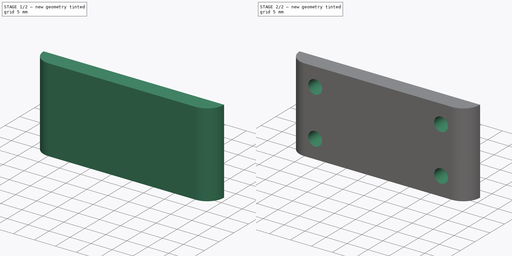
[diagram: build sequence overview — one tinted view per stage of 2, left to right]
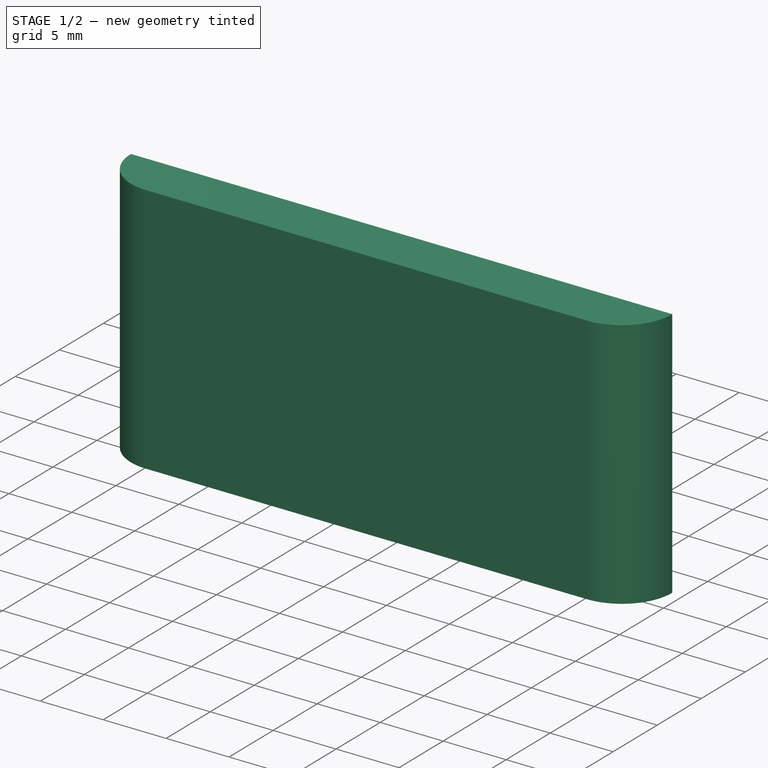
[diagram: stage 1 of 2 — iso view after this stage's code; geometry added in this stage tinted green]
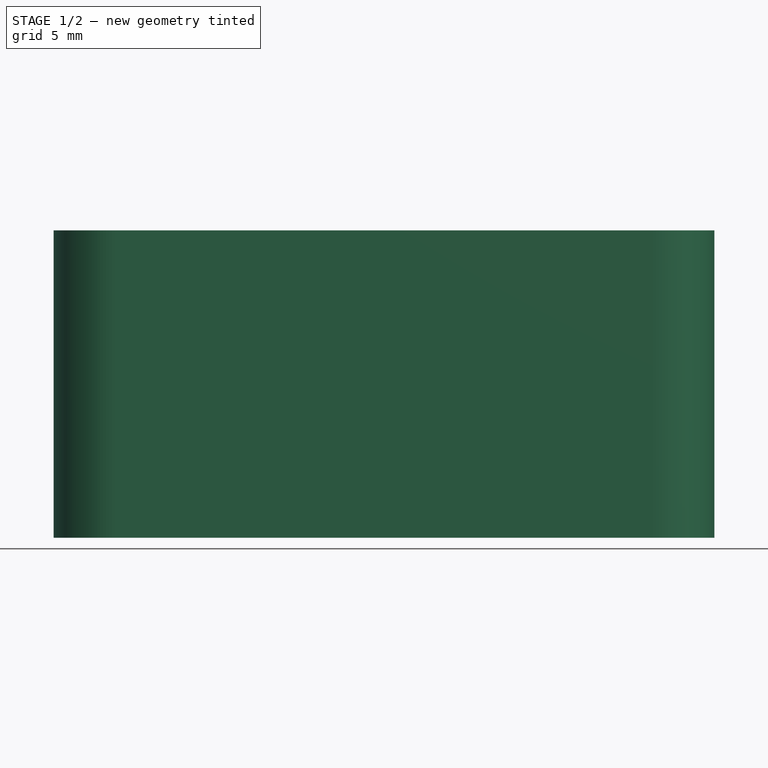
[diagram: stage 1 of 2 — front view after this stage's code; geometry added in this stage tinted green]
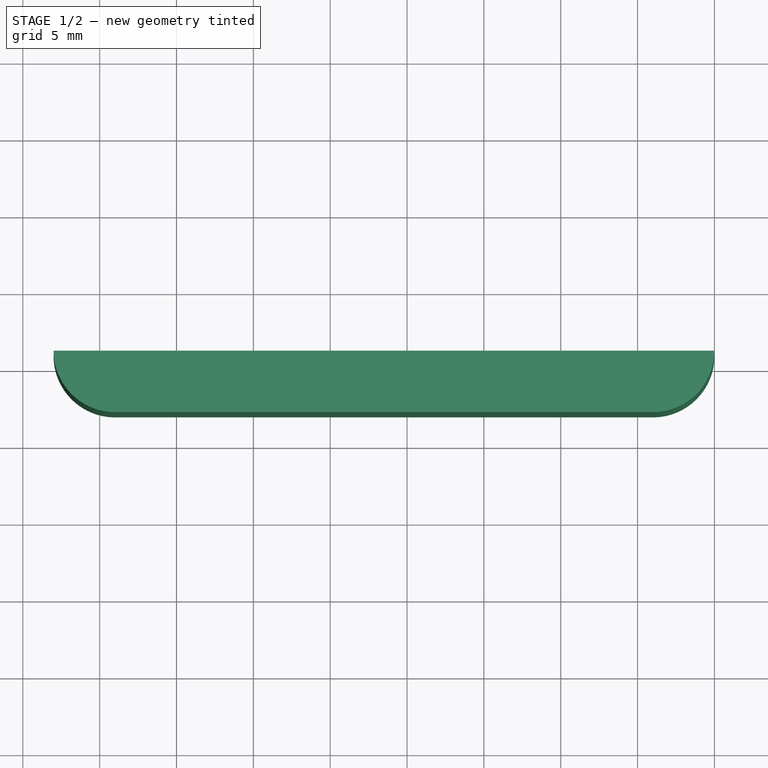
[diagram: stage 1 of 2 — top view after this stage's code; geometry added in this stage tinted green]
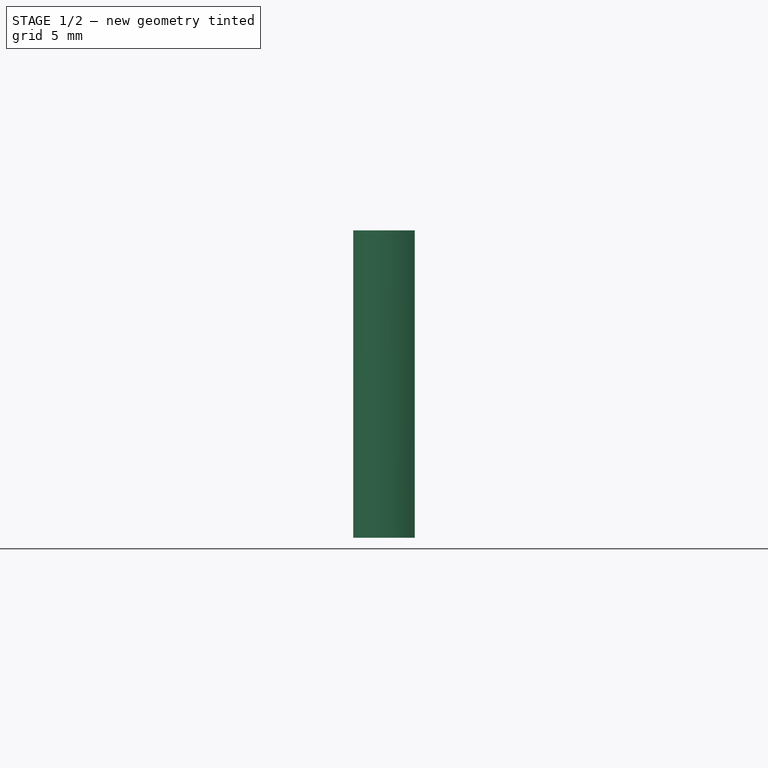
[diagram: stage 1 of 2 — right view after this stage's code; geometry added in this stage tinted green]
FCSTD DOCUMENT  (FreeCAD 0.19R24276 (Git))
Label: Gt2_roller_support_part_2
License: All rights reserved
LicenseURL: http://en.wikipedia.org/wiki/All_rights_reserved
objects: Sketcher::SketchObject×3, PartDesign::Pocket×2, PartDesign::Pad×1, PartDesign::Body×1
note: 10 computed .brp shape members not serialized (recipe doc carries the construction recipe); baked Part::Feature solids carry a one-line shape summary decoded from their .brp

FEATURE [Sketcher::SketchObject] Sketch
  FullyConstrained = false
  MapMode = 5
  Support = -> [XY_Plane]
  sketch-geometry (12):
    g0: ArcOfCircle CenterX=0 CenterY=0 CenterZ=0 NormalX=0 NormalY=0 NormalZ=1 AngleXU=0 Radius=13 StartAngle=6.03658 EndAngle=9.42478
    g1: ArcOfCircle CenterX=26 CenterY=-24 CenterZ=0 NormalX=0 NormalY=0 NormalZ=1 AngleXU=0 Radius=4 StartAngle=4.71239 EndAngle=6.85854
    g2: ArcOfCircle CenterX=-9 CenterY=-24 CenterZ=0 NormalX=0 NormalY=0 NormalZ=1 AngleXU=0 Radius=4 StartAngle=3.14159 EndAngle=4.71239
    g3: LineSegment StartX=-9 StartY=-24 StartZ=0 EndX=26 EndY=-24 EndZ=0
    g4: LineSegment StartX=-9 StartY=-24 StartZ=0 EndX=-13 EndY=-24 EndZ=0
    g5: LineSegment StartX=-9 StartY=-24 StartZ=0 EndX=-9 EndY=-28 EndZ=0
    g6: LineSegment StartX=26 StartY=-24 StartZ=0 EndX=26 EndY=-28 EndZ=0
    g7: LineSegment StartX=-9 StartY=-28 StartZ=0 EndX=26 EndY=-28 EndZ=0
    g8: LineSegment StartX=26 StartY=-24 StartZ=0 EndX=29.356 EndY=-21.8235 EndZ=0
    g9: LineSegment StartX=29.356 StartY=-21.8235 StartZ=0 EndX=12.6067 EndY=-3.17348 EndZ=0
    g10: LineSegment StartX=-13 StartY=-24 StartZ=0 EndX=-13 EndY=3.6e-15 EndZ=0
    g11: Circle CenterX=0 CenterY=0 CenterZ=0 NormalX=0 NormalY=0 NormalZ=1 AngleXU=0 Radius=8
  constraints (29):
    c: Coincident(g0,g-1)
    c: Diameter(g0) = 26
    c: Horizontal(g3)
    c: Diameter(g2) = 8
    c: Diameter(g1) = 8
    c: DistanceX(g2,g1) = 35
    c: Horizontal(g4)
    c: Vertical(g5)
    c: Vertical(g6)
    c: Coincident(g7,g5)
    c: PointOnObject(g8,g1)
    c: Coincident(g9,g8)
    c: Coincident(g1,g6)
    c: PointOnObject(g1,g9)
    c: Coincident(g2,g7)
    c: Coincident(g2,g4)
    c: Coincident(g10,g2)
    c: DistanceY(g2,g0) = 28
    c: Coincident(g7,g1)
    c: Coincident(g5,g4)
    c: Coincident(g4,g3)
    c: Coincident(g2,g3)
    c: Coincident(g3,g8)
    c: Coincident(g6,g3)
    c: Coincident(g1,g3)
    c: Vertical(g10)
    c: Coincident(g0,g9)
    c: Coincident(g11,g0)
    c: Diameter(g11) = 16
FEATURE [PartDesign::Pad] Pad
  Direction = (1,1,1)
  Length = 20
  Length2 = 100
  Profile = -> Sketch
  Type = 0
FEATURE [Sketcher::SketchObject] Sketch001
  FullyConstrained = false
  MapMode = 5
  Placement = pos=(0,0,20) rot=(0,0,1;0rad)
  Support = -> [Pad]
  sketch-geometry (4):
    g0: LineSegment StartX=-26.0454 StartY=24.1863 StartZ=0 EndX=47.1364 EndY=24.1863 EndZ=0
    g1: LineSegment StartX=47.1364 StartY=24.1863 StartZ=0 EndX=47.1364 EndY=-24 EndZ=0
    g2: LineSegment StartX=47.1364 StartY=-24 StartZ=0 EndX=-26.0454 EndY=-24 EndZ=0
    g3: LineSegment StartX=-26.0454 StartY=-24 StartZ=0 EndX=-26.0454 EndY=24.1863 EndZ=0
  constraints (9):
    c: Coincident(g0,g1)
    c: Coincident(g1,g2)
    c: Coincident(g2,g3)
    c: Coincident(g3,g0)
    c: Horizontal(g0)
    c: Horizontal(g2)
    c: Vertical(g1)
    c: Vertical(g3)
    c: DistanceY(g1,g-1) = 24
FEATURE [PartDesign::Pocket] Pocket
  BaseFeature = -> Pad
  Length = 5
  Length2 = 100
  Profile = -> Sketch001
  Type = 1
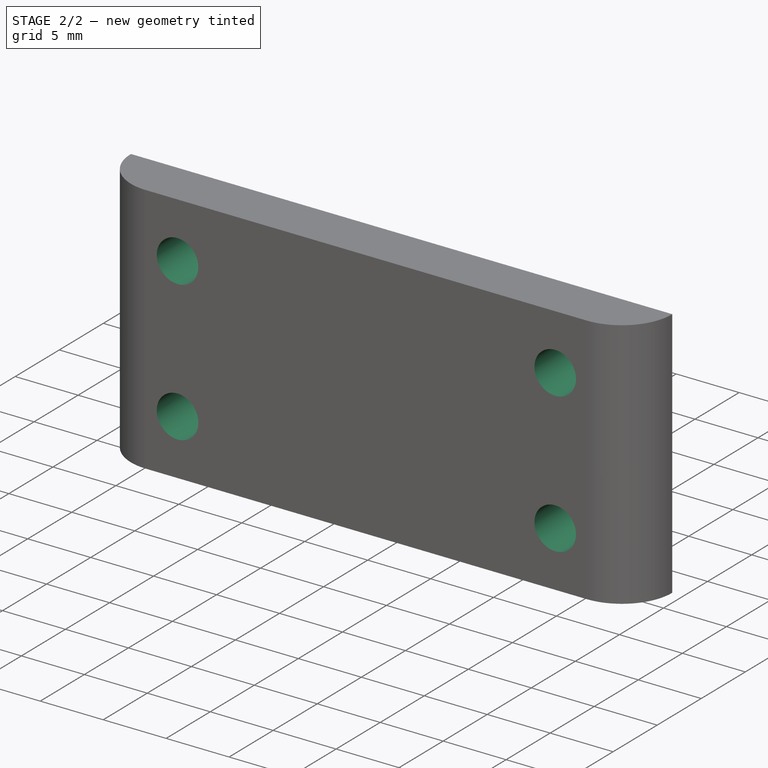
[diagram: stage 2 of 2 — iso view after this stage's code; geometry added in this stage tinted green]
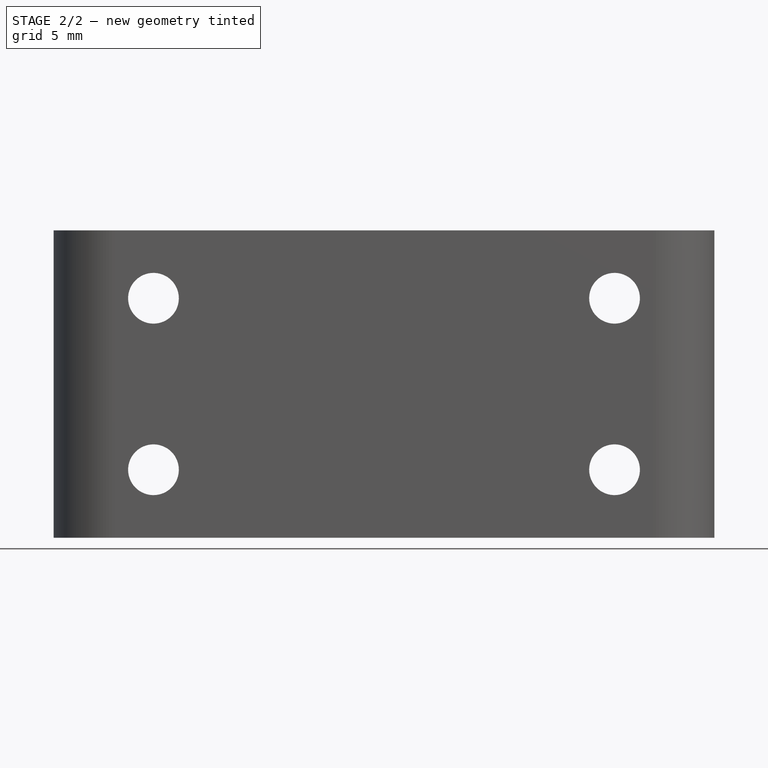
[diagram: stage 2 of 2 — front view after this stage's code; geometry added in this stage tinted green]
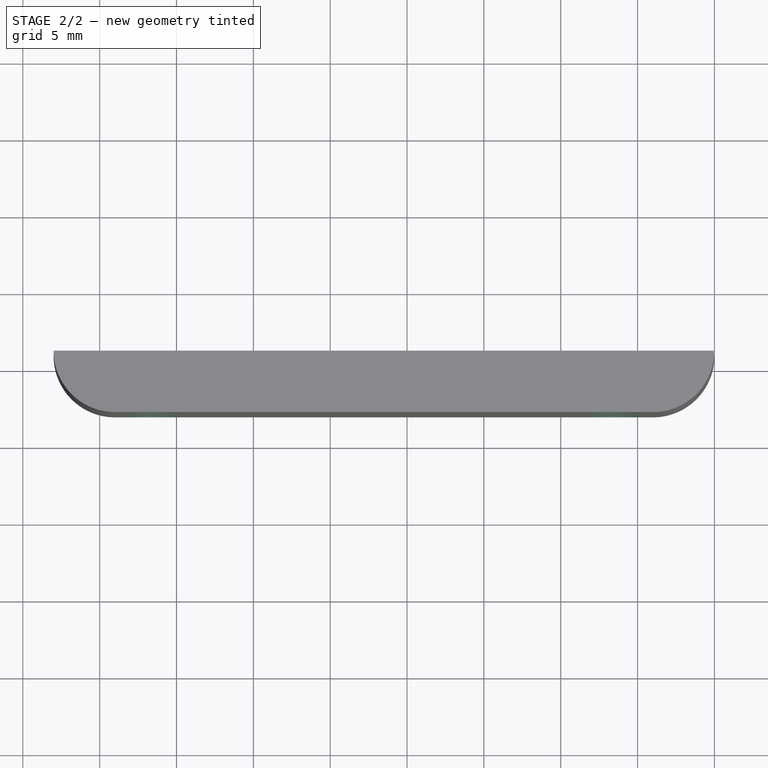
[diagram: stage 2 of 2 — top view after this stage's code; geometry added in this stage tinted green]
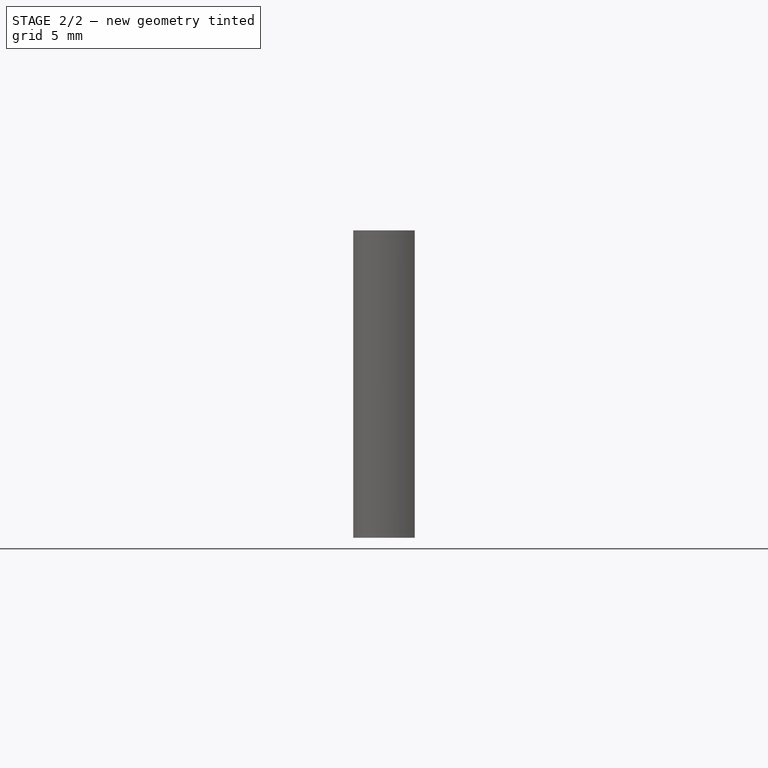
[diagram: stage 2 of 2 — right view after this stage's code; geometry added in this stage tinted green]
FEATURE [Sketcher::SketchObject] Sketch002
  FullyConstrained = false
  MapMode = 5
  Placement = pos=(0,-24,0) rot=(0,0.707107,0.707107;3.14159rad)
  Support = -> [Pocket]
  sketch-geometry (15):
    g0: LineSegment StartX=-30 StartY=20 StartZ=0 EndX=13 EndY=20 EndZ=0
    g1: LineSegment StartX=13 StartY=20 StartZ=0 EndX=13 EndY=0 EndZ=0
    g2: LineSegment StartX=13 StartY=0 StartZ=0 EndX=-30 EndY=0 EndZ=0
    g3: LineSegment StartX=-30 StartY=0 StartZ=0 EndX=-30 EndY=20 EndZ=0
    g4: LineSegment StartX=-23.5 StartY=15.579 StartZ=0 EndX=6.5 EndY=15.579 EndZ=0
    g5: LineSegment StartX=6.5 StartY=15.579 StartZ=0 EndX=6.5 EndY=4.42098 EndZ=0
    g6: LineSegment StartX=6.5 StartY=4.42098 StartZ=0 EndX=-23.5 EndY=4.42098 EndZ=0
    g7: LineSegment StartX=-23.5 StartY=4.42098 StartZ=0 EndX=-23.5 EndY=15.579 EndZ=0
    g8: LineSegment StartX=-23.5 StartY=15.579 StartZ=0 EndX=6.5 EndY=4.42098 EndZ=0
    g9: LineSegment StartX=-8.5 StartY=10 StartZ=0 EndX=-23.5 EndY=4.42098 EndZ=0
    g10: Circle CenterX=-23.5 CenterY=15.579 CenterZ=0 NormalX=0 NormalY=0 NormalZ=1 AngleXU=0 Radius=1.65
    g11: Circle CenterX=-23.5 CenterY=4.42098 CenterZ=0 NormalX=0 NormalY=0 NormalZ=1 AngleXU=0 Radius=5.1e-15
    g12: Circle CenterX=6.5 CenterY=15.579 CenterZ=0 NormalX=0 NormalY=0 NormalZ=1 AngleXU=0 Radius=1.65
    g13: Circle CenterX=6.5 CenterY=4.42098 CenterZ=0 NormalX=0 NormalY=0 NormalZ=1 AngleXU=0 Radius=1.65
    g14: Circle CenterX=-23.5 CenterY=4.42098 CenterZ=0 NormalX=0 NormalY=0 NormalZ=1 AngleXU=0 Radius=1.65
  constraints (37):
    c: Coincident(g0,g1)
    c: Coincident(g1,g2)
    c: Coincident(g2,g3)
    c: Coincident(g3,g0)
    c: Horizontal(g0)
    c: Horizontal(g2)
    c: Vertical(g1)
    c: Vertical(g3)
    c: DistanceX(g-1,g1) = 13
    c: DistanceX(g2,g1) = 43
    c: DistanceY(g1,g1) = 20
    c: Coincident(g4,g5)
    c: Coincident(g5,g6)
    c: Coincident(g6,g7)
    c: Coincident(g7,g4)
    c: Horizontal(g4)
    c: Horizontal(g6)
    c: Vertical(g5)
    c: Vertical(g7)
    c: Coincident(g8,g4)
    c: Coincident(g8,g5)
    c: Coincident(g9,g6)
    c: PointOnObject(g9,g8)
    c: Symmetric(g0,g1,g9)
    c: DistanceY(g2,g-1) = 0
    c: Coincident(g10,g4)
    c: Coincident(g11,g6)
    c: Tangent(g11,g7)
    c: Coincident(g12,g4)
    c: Coincident(g13,g5)
    c: Coincident(g14,g11)
    c: Equal(g10,g14)
    c: Equal(g14,g12)
    c: Equal(g12,g13)
    c: Diameter(g12) = 3.3
    c: DistanceX(g4,g4) = 30
    c: DistanceX(g11,g9) = 15
FEATURE [PartDesign::Pocket] Pocket001
  BaseFeature = -> Pocket
  Length = 5
  Length2 = 100
  Profile = -> Sketch002
  Type = 1
FEATURE [PartDesign::Body] Body
  Group = -> [Sketch,Pad,Sketch001,Pocket,Sketch002,Pocket001]
  Origin = -> Origin
  Tip = -> Pocket001
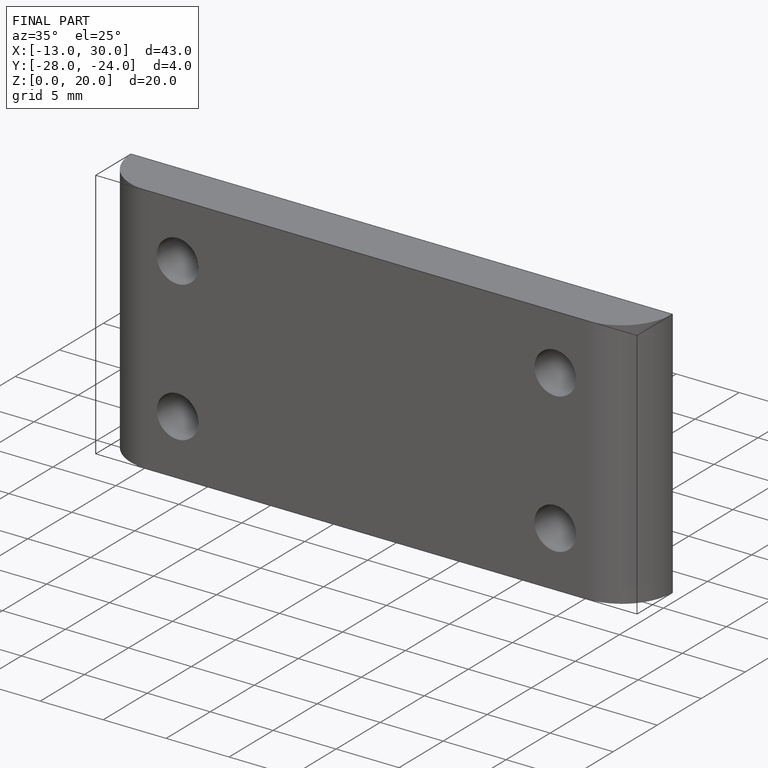
[diagram: finished part — iso view with bounding-box wireframe]
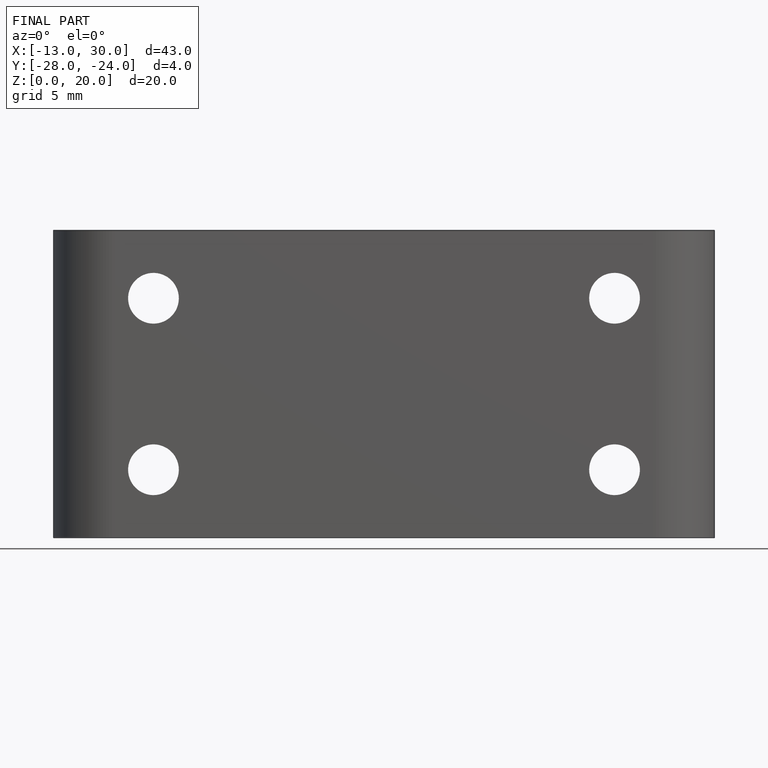
[diagram: finished part — front view with bounding-box wireframe]
